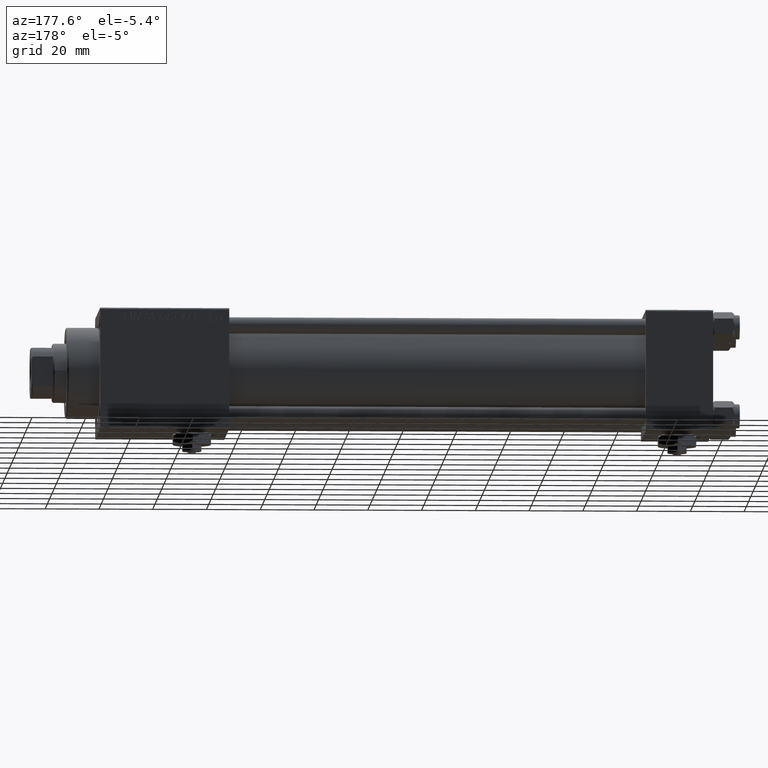
[diagram: clean part render]
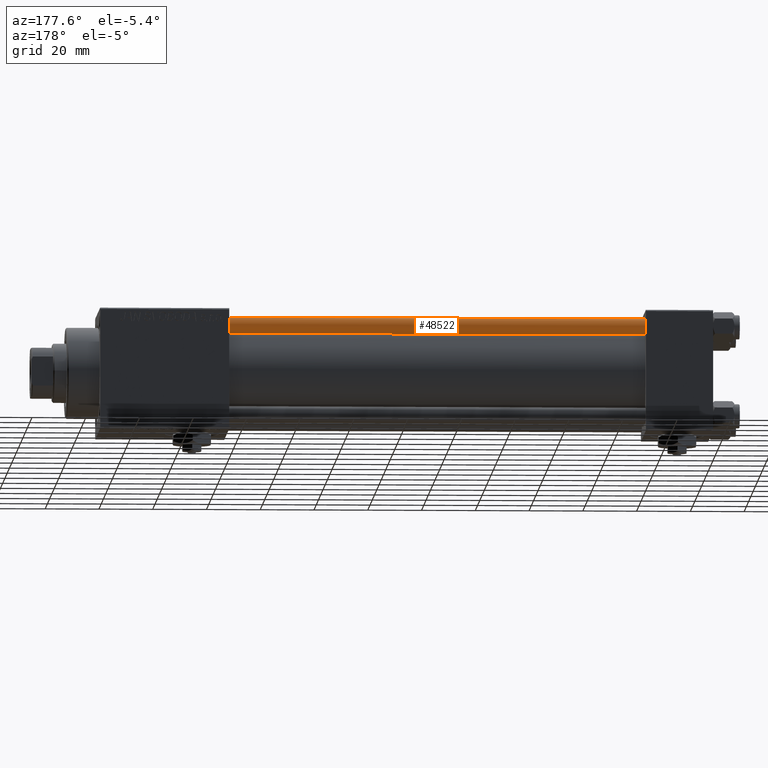
[diagram: same view with one face highlighted and labeled with its STEP entity id]
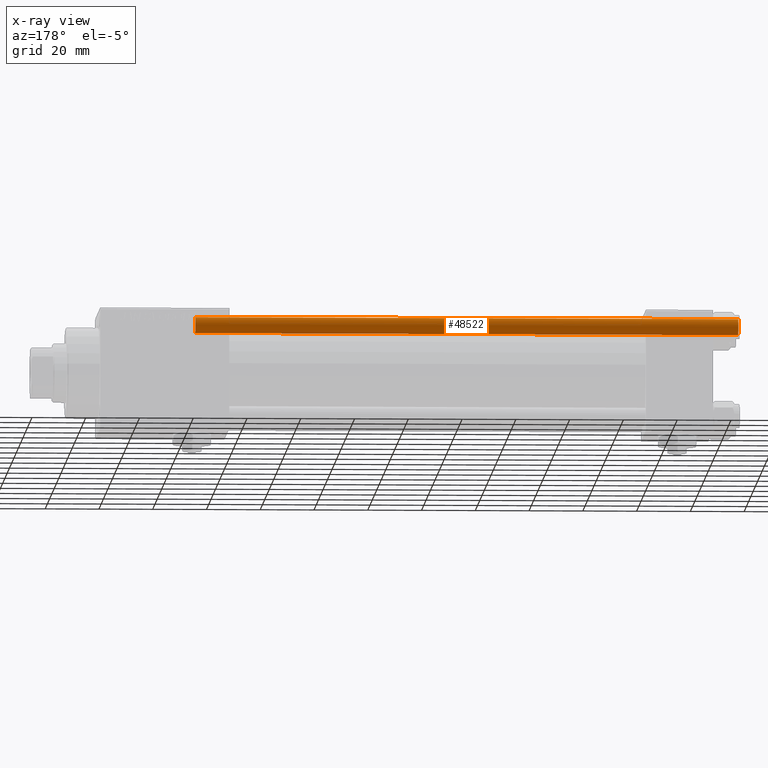
[diagram: x-ray of the same camera — body ghosted, the highlighted face saturated]
A machine part, auxiliary view. The second image highlights one B-rep face of the part: STEP entity #48522.
The next image is the same camera in x-ray: the body ghosted, the highlighted face saturated — about 0% of this face is hidden behind the body in this view.
In plain terms, the highlighted cylindrical surface (edge-blend (fillet) strip) has radius 3 mm, axis along (-1, 0, 0).
Its self-contained STEP definition (entity closure, byte-faithful):
#705 = VERTEX_POINT ( 'NONE', #16305 ) ;
#1947 = VERTEX_POINT ( 'NONE', #28889 ) ;
#3881 = DIRECTION ( 'NONE',  ( 1.000000000000000000, 0.000000000000000000, 0.000000000000000000 ) ) ;
#4975 = CIRCLE ( 'NONE', #47936, 3.000000000000000444 ) ;
#5532 = DIRECTION ( 'NONE',  ( -0.000000000000000000, -0.000000000000000000, -1.000000000000000000 ) ) ;
#7607 = LINE ( 'NONE', #8389, #25537 ) ;
#7615 = DIRECTION ( 'NONE',  ( -0.000000000000000000, -0.000000000000000000, 1.000000000000000000 ) ) ;
#8389 = CARTESIAN_POINT ( 'NONE',  ( -3.000000000000000444, 0.000000000000000000, 203.0000000000000000 ) ) ;
#8993 = ORIENTED_EDGE ( 'NONE', *, *, #26568, .F. ) ;
#9184 = CARTESIAN_POINT ( 'NONE',  ( 3.000000000000000444, 3.673940397442059868E-16, 0.5000000000001114664 ) ) ;
#11066 = DIRECTION ( 'NONE',  ( 1.000000000000000000, 0.000000000000000000, 0.000000000000000000 ) ) ;
#11752 = VECTOR ( 'NONE', #18375, 1000.000000000000000 ) ;
#12715 = VERTEX_POINT ( 'NONE', #26862 ) ;
#14244 = DIRECTION ( 'NONE',  ( -1.000000000000000000, 0.000000000000000000, 0.000000000000000000 ) ) ;
#16113 = AXIS2_PLACEMENT_3D ( 'NONE', #47722, #7615, #11066 ) ;
#16305 = CARTESIAN_POINT ( 'NONE',  ( -3.000000000000000444, 0.000000000000000000, 202.5000000000000853 ) ) ;
#17423 = FACE_OUTER_BOUND ( 'NONE', #21661, .T. ) ;
#17766 = ORIENTED_EDGE ( 'NONE', *, *, #45666, .T. ) ;
#18375 = DIRECTION ( 'NONE',  ( -0.000000000000000000, -0.000000000000000000, -1.000000000000000000 ) ) ;
#19473 = CARTESIAN_POINT ( 'NONE',  ( 0.000000000000000000, 0.000000000000000000, 202.5000000000000853 ) ) ;
#19866 = ORIENTED_EDGE ( 'NONE', *, *, #21896, .T. ) ;
#21661 = EDGE_LOOP ( 'NONE', ( #41437, #17766, #19866, #8993 ) ) ;
#21896 = EDGE_CURVE ( 'NONE', #42295, #12715, #49795, .T. ) ;
#21900 = CARTESIAN_POINT ( 'NONE',  ( 0.000000000000000000, 0.000000000000000000, 203.0000000000000000 ) ) ;
#25537 = VECTOR ( 'NONE', #48220, 1000.000000000000000 ) ;
#25604 = CYLINDRICAL_SURFACE ( 'NONE', #29709, 3.000000000000000444 ) ;
#26568 = EDGE_CURVE ( 'NONE', #705, #12715, #7607, .T. ) ;
#26862 = CARTESIAN_POINT ( 'NONE',  ( -3.000000000000000444, 0.000000000000000000, 0.5000000000001114664 ) ) ;
#28889 = CARTESIAN_POINT ( 'NONE',  ( 3.000000000000000444, 3.673940397442059868E-16, 202.5000000000000853 ) ) ;
#29709 = AXIS2_PLACEMENT_3D ( 'NONE', #21900, #5532, #14244 ) ;
#29724 = LINE ( 'NONE', #49742, #11752 ) ;
#31343 = DIRECTION ( 'NONE',  ( 0.000000000000000000, 0.000000000000000000, -1.000000000000000000 ) ) ;
#41437 = ORIENTED_EDGE ( 'NONE', *, *, #45340, .T. ) ;
#42295 = VERTEX_POINT ( 'NONE', #9184 ) ;
#45340 = EDGE_CURVE ( 'NONE', #705, #1947, #4975, .T. ) ;
#45666 = EDGE_CURVE ( 'NONE', #1947, #42295, #29724, .T. ) ;
#47722 = CARTESIAN_POINT ( 'NONE',  ( 0.000000000000000000, 0.000000000000000000, 0.5000000000001114664 ) ) ;
#47936 = AXIS2_PLACEMENT_3D ( 'NONE', #19473, #31343, #3881 ) ;
#48220 = DIRECTION ( 'NONE',  ( -0.000000000000000000, -0.000000000000000000, -1.000000000000000000 ) ) ;
#48522 = ADVANCED_FACE ( 'NONE', ( #17423 ), #25604, .T. ) ;
#49742 = CARTESIAN_POINT ( 'NONE',  ( 3.000000000000000444, 3.673940397442059868E-16, 203.0000000000000000 ) ) ;
#49795 = CIRCLE ( 'NONE', #16113, 3.000000000000000444 ) ;